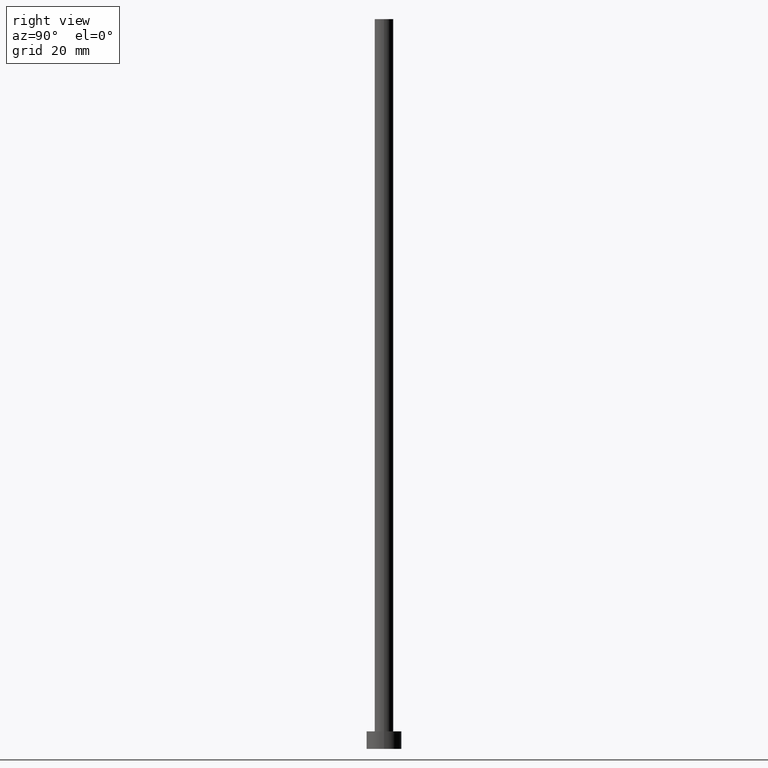
[diagram: clean part render]
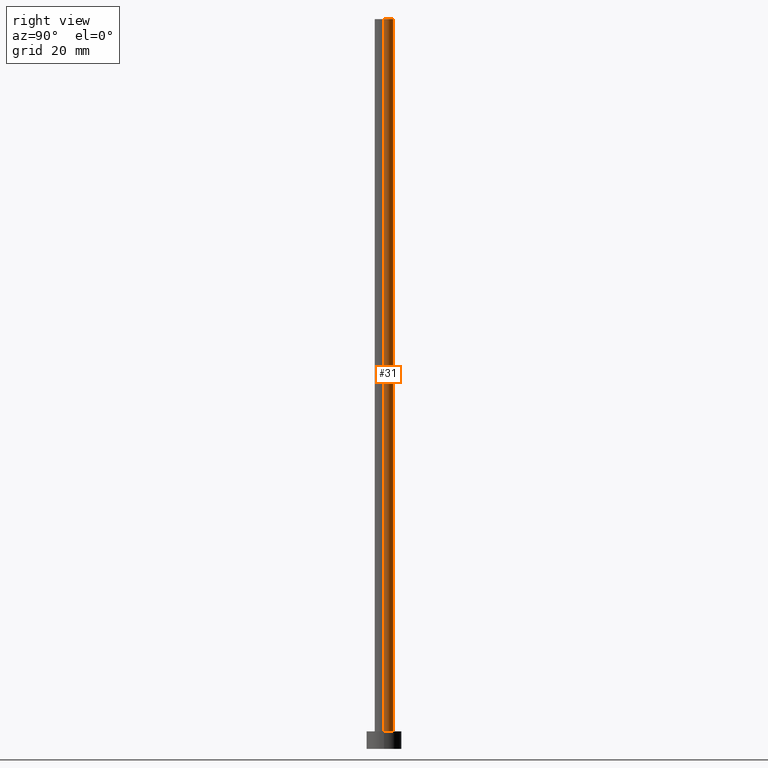
[diagram: same view with one face highlighted and labeled with its STEP entity id]
A machine part, right view. The second image highlights one B-rep face of the part: STEP entity #31.
In plain terms, the highlighted cylindrical surface (edge-blend (fillet) strip) has radius 1.6 mm, axis along (-0, -0, -1).
Its self-contained STEP definition (entity closure, byte-faithful):
#3 = CIRCLE ( 'NONE', #38, 1.600000000000000089 ) ;
#4 = CARTESIAN_POINT ( 'NONE',  ( 1.600000000000000089, 1.959434878635764737E-16, 3.000000000000000000 ) ) ;
#8 = VERTEX_POINT ( 'NONE', #4 ) ;
#11 = AXIS2_PLACEMENT_3D ( 'NONE', #219, #122, #198 ) ;
#16 = VECTOR ( 'NONE', #116, 1000.000000000000000 ) ;
#31 = ADVANCED_FACE ( 'NONE', ( #197 ), #37, .T. ) ;
#32 = LINE ( 'NONE', #206, #16 ) ;
#37 = CYLINDRICAL_SURFACE ( 'NONE', #11, 1.600000000000000089 ) ;
#38 = AXIS2_PLACEMENT_3D ( 'NONE', #49, #72, #245 ) ;
#49 = CARTESIAN_POINT ( 'NONE',  ( 0.000000000000000000, 0.000000000000000000, 125.0000000000000000 ) ) ;
#56 = LINE ( 'NONE', #138, #179 ) ;
#68 = VERTEX_POINT ( 'NONE', #232 ) ;
#72 = DIRECTION ( 'NONE',  ( 0.000000000000000000, 0.000000000000000000, 1.000000000000000000 ) ) ;
#73 = EDGE_CURVE ( 'NONE', #76, #107, #56, .T. ) ;
#76 = VERTEX_POINT ( 'NONE', #237 ) ;
#82 = EDGE_LOOP ( 'NONE', ( #178, #194, #153, #255 ) ) ;
#93 = DIRECTION ( 'NONE',  ( -0.000000000000000000, -0.000000000000000000, -1.000000000000000000 ) ) ;
#96 = AXIS2_PLACEMENT_3D ( 'NONE', #203, #205, #140 ) ;
#107 = VERTEX_POINT ( 'NONE', #222 ) ;
#116 = DIRECTION ( 'NONE',  ( -0.000000000000000000, -0.000000000000000000, -1.000000000000000000 ) ) ;
#117 = CIRCLE ( 'NONE', #96, 1.600000000000000089 ) ;
#122 = DIRECTION ( 'NONE',  ( -0.000000000000000000, -0.000000000000000000, -1.000000000000000000 ) ) ;
#138 = CARTESIAN_POINT ( 'NONE',  ( -1.600000000000000089, 0.000000000000000000, 125.0000000000000000 ) ) ;
#140 = DIRECTION ( 'NONE',  ( 1.000000000000000000, 0.000000000000000000, 0.000000000000000000 ) ) ;
#153 = ORIENTED_EDGE ( 'NONE', *, *, #154, .T. ) ;
#154 = EDGE_CURVE ( 'NONE', #8, #107, #117, .T. ) ;
#157 = EDGE_CURVE ( 'NONE', #68, #76, #3, .T. ) ;
#170 = EDGE_CURVE ( 'NONE', #68, #8, #32, .T. ) ;
#178 = ORIENTED_EDGE ( 'NONE', *, *, #157, .F. ) ;
#179 = VECTOR ( 'NONE', #93, 1000.000000000000000 ) ;
#194 = ORIENTED_EDGE ( 'NONE', *, *, #170, .T. ) ;
#197 = FACE_OUTER_BOUND ( 'NONE', #82, .T. ) ;
#198 = DIRECTION ( 'NONE',  ( -1.000000000000000000, 0.000000000000000000, 0.000000000000000000 ) ) ;
#203 = CARTESIAN_POINT ( 'NONE',  ( 0.000000000000000000, 0.000000000000000000, 3.000000000000000000 ) ) ;
#205 = DIRECTION ( 'NONE',  ( 0.000000000000000000, 0.000000000000000000, 1.000000000000000000 ) ) ;
#206 = CARTESIAN_POINT ( 'NONE',  ( 1.600000000000000089, 1.959434878635764737E-16, 125.0000000000000000 ) ) ;
#219 = CARTESIAN_POINT ( 'NONE',  ( 0.000000000000000000, 0.000000000000000000, 125.0000000000000000 ) ) ;
#222 = CARTESIAN_POINT ( 'NONE',  ( -1.600000000000000089, 0.000000000000000000, 3.000000000000000000 ) ) ;
#232 = CARTESIAN_POINT ( 'NONE',  ( 1.600000000000000089, 1.959434878635764737E-16, 125.0000000000000000 ) ) ;
#237 = CARTESIAN_POINT ( 'NONE',  ( -1.600000000000000089, 0.000000000000000000, 125.0000000000000000 ) ) ;
#245 = DIRECTION ( 'NONE',  ( 1.000000000000000000, 0.000000000000000000, 0.000000000000000000 ) ) ;
#255 = ORIENTED_EDGE ( 'NONE', *, *, #73, .F. ) ;